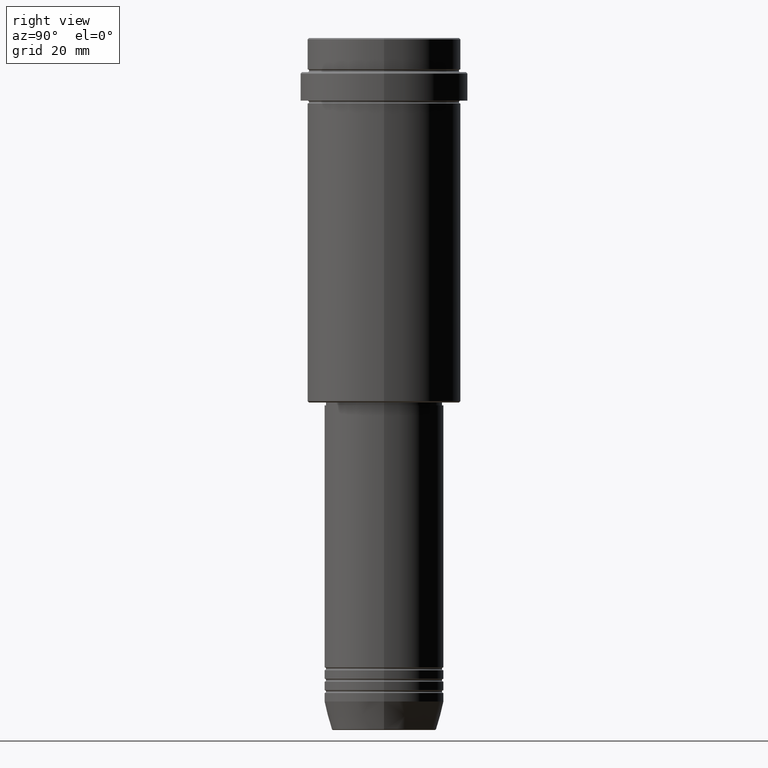
[diagram: clean part render]
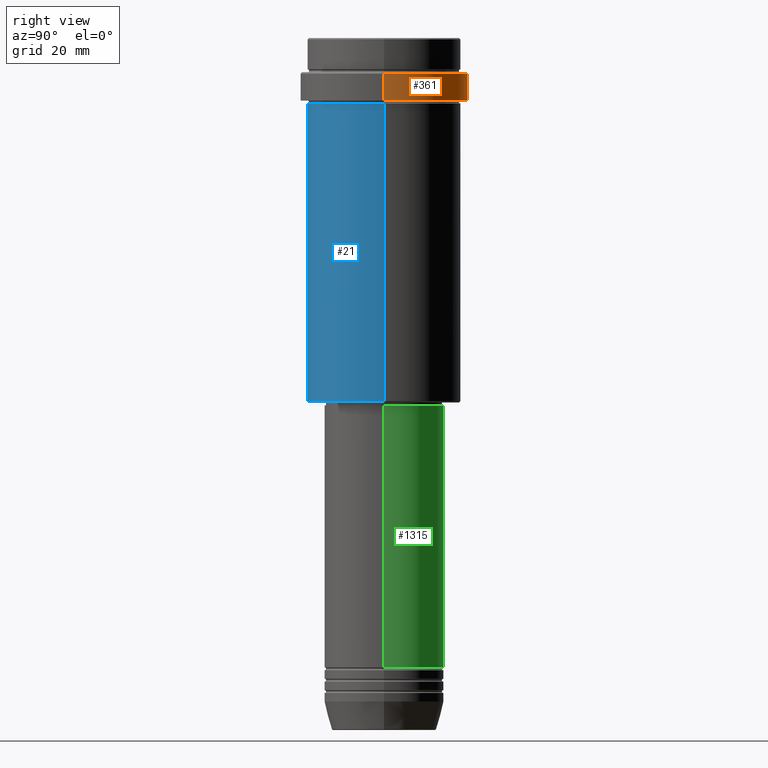
[diagram: same view with three faces highlighted in distinct colors, each labeled with its STEP entity id]
A machine part, right view with three faces highlighted in distinct colors.
Their STEP definitions:

[orange] entity #361 — the highlighted cylindrical surface (partial cylindrical patch) has radius 29.5 mm, axis along (-0, -0, 1).
#151 = DIRECTION ( 'NONE',  ( -0.000000000000000000, -0.000000000000000000, 1.000000000000000000 ) ) ;
#277 = VECTOR ( 'NONE', #1008, 1000.000000000000000 ) ;
#282 = CARTESIAN_POINT ( 'NONE',  ( 29.50000000000000000, 0.000000000000000000, 0.000000000000000000 ) ) ;
#306 = DIRECTION ( 'NONE',  ( -0.000000000000000000, -0.000000000000000000, 1.000000000000000000 ) ) ;
#311 = VERTEX_POINT ( 'NONE', #944 ) ;
#344 = EDGE_CURVE ( 'NONE', #1013, #311, #599, .T. ) ;
#361 = ADVANCED_FACE ( 'NONE', ( #493 ), #1359, .T. ) ;
#363 = AXIS2_PLACEMENT_3D ( 'NONE', #671, #1077, #458 ) ;
#369 = CARTESIAN_POINT ( 'NONE',  ( 0.000000000000000000, 0.000000000000000000, -22.00000000000000711 ) ) ;
#458 = DIRECTION ( 'NONE',  ( 1.000000000000000000, 0.000000000000000000, 0.000000000000000000 ) ) ;
#493 = FACE_OUTER_BOUND ( 'NONE', #1242, .T. ) ;
#500 = ORIENTED_EDGE ( 'NONE', *, *, #1154, .T. ) ;
#599 = LINE ( 'NONE', #282, #1183 ) ;
#603 = CARTESIAN_POINT ( 'NONE',  ( -29.50000000000000000, 3.612708057484691604E-15, 0.000000000000000000 ) ) ;
#650 = VERTEX_POINT ( 'NONE', #1122 ) ;
#671 = CARTESIAN_POINT ( 'NONE',  ( 0.000000000000000000, 0.000000000000000000, -12.49999999999994849 ) ) ;
#690 = ORIENTED_EDGE ( 'NONE', *, *, #716, .T. ) ;
#716 = EDGE_CURVE ( 'NONE', #1013, #1407, #1410, .T. ) ;
#827 = CARTESIAN_POINT ( 'NONE',  ( 0.000000000000000000, 0.000000000000000000, 0.000000000000000000 ) ) ;
#917 = EDGE_CURVE ( 'NONE', #650, #311, #1292, .T. ) ;
#944 = CARTESIAN_POINT ( 'NONE',  ( 29.50000000000000000, 0.000000000000000000, -12.49999999999994849 ) ) ;
#972 = CARTESIAN_POINT ( 'NONE',  ( -29.49999999999999645, 3.612708057484690815E-15, -22.00000000000000711 ) ) ;
#975 = CARTESIAN_POINT ( 'NONE',  ( 29.49999999999999645, 0.000000000000000000, -22.00000000000000711 ) ) ;
#1008 = DIRECTION ( 'NONE',  ( -0.000000000000000000, -0.000000000000000000, 1.000000000000000000 ) ) ;
#1013 = VERTEX_POINT ( 'NONE', #975 ) ;
#1077 = DIRECTION ( 'NONE',  ( 0.000000000000000000, 0.000000000000000000, -1.000000000000000000 ) ) ;
#1121 = LINE ( 'NONE', #603, #277 ) ;
#1122 = CARTESIAN_POINT ( 'NONE',  ( -29.50000000000000000, 3.612708057484691604E-15, -12.49999999999994849 ) ) ;
#1141 = DIRECTION ( 'NONE',  ( 1.000000000000000000, 0.000000000000000000, 0.000000000000000000 ) ) ;
#1150 = ORIENTED_EDGE ( 'NONE', *, *, #344, .F. ) ;
#1154 = EDGE_CURVE ( 'NONE', #1407, #650, #1121, .T. ) ;
#1167 = DIRECTION ( 'NONE',  ( 1.000000000000000000, 0.000000000000000000, 0.000000000000000000 ) ) ;
#1183 = VECTOR ( 'NONE', #306, 1000.000000000000000 ) ;
#1242 = EDGE_LOOP ( 'NONE', ( #690, #500, #1265, #1150 ) ) ;
#1265 = ORIENTED_EDGE ( 'NONE', *, *, #917, .T. ) ;
#1291 = AXIS2_PLACEMENT_3D ( 'NONE', #827, #1369, #1167 ) ;
#1292 = CIRCLE ( 'NONE', #363, 29.50000000000000000 ) ;
#1359 = CYLINDRICAL_SURFACE ( 'NONE', #1291, 29.50000000000000000 ) ;
#1364 = AXIS2_PLACEMENT_3D ( 'NONE', #369, #151, #1141 ) ;
#1369 = DIRECTION ( 'NONE',  ( -0.000000000000000000, -0.000000000000000000, 1.000000000000000000 ) ) ;
#1407 = VERTEX_POINT ( 'NONE', #972 ) ;
#1410 = CIRCLE ( 'NONE', #1364, 29.49999999999999645 ) ;

[blue] entity #21 — the highlighted cylindrical surface (partial cylindrical patch) has radius 27 mm, axis along (-0, -0, 1).
#21 = ADVANCED_FACE ( 'NONE', ( #334 ), #1396, .T. ) ;
#94 = CARTESIAN_POINT ( 'NONE',  ( 27.00000000000000355, 0.000000000000000000, 0.000000000000000000 ) ) ;
#132 = CIRCLE ( 'NONE', #970, 27.00000000000000355 ) ;
#200 = AXIS2_PLACEMENT_3D ( 'NONE', #443, #777, #428 ) ;
#202 = LINE ( 'NONE', #831, #562 ) ;
#251 = VECTOR ( 'NONE', #839, 1000.000000000000000 ) ;
#285 = DIRECTION ( 'NONE',  ( -0.000000000000000000, -0.000000000000000000, 1.000000000000000000 ) ) ;
#289 = VERTEX_POINT ( 'NONE', #999 ) ;
#302 = VERTEX_POINT ( 'NONE', #912 ) ;
#312 = CARTESIAN_POINT ( 'NONE',  ( 27.00000000000000355, 0.000000000000000000, -23.00000000000001421 ) ) ;
#320 = AXIS2_PLACEMENT_3D ( 'NONE', #1151, #609, #1039 ) ;
#334 = FACE_OUTER_BOUND ( 'NONE', #1370, .T. ) ;
#347 = DIRECTION ( 'NONE',  ( -1.000000000000000000, 0.000000000000000000, 0.000000000000000000 ) ) ;
#380 = ORIENTED_EDGE ( 'NONE', *, *, #1297, .F. ) ;
#428 = DIRECTION ( 'NONE',  ( 1.000000000000000000, 0.000000000000000000, 0.000000000000000000 ) ) ;
#443 = CARTESIAN_POINT ( 'NONE',  ( 0.000000000000000000, 0.000000000000000000, 0.000000000000000000 ) ) ;
#465 = DIRECTION ( 'NONE',  ( -0.000000000000000000, -0.000000000000000000, 1.000000000000000000 ) ) ;
#495 = VERTEX_POINT ( 'NONE', #312 ) ;
#561 = CARTESIAN_POINT ( 'NONE',  ( 27.00000000000000355, 0.000000000000000000, -127.5000000000000000 ) ) ;
#562 = VECTOR ( 'NONE', #285, 1000.000000000000000 ) ;
#609 = DIRECTION ( 'NONE',  ( -0.000000000000000000, -0.000000000000000000, 1.000000000000000000 ) ) ;
#777 = DIRECTION ( 'NONE',  ( -0.000000000000000000, -0.000000000000000000, 1.000000000000000000 ) ) ;
#813 = ORIENTED_EDGE ( 'NONE', *, *, #1193, .T. ) ;
#821 = CIRCLE ( 'NONE', #320, 27.00000000000000355 ) ;
#831 = CARTESIAN_POINT ( 'NONE',  ( -27.00000000000000355, 3.306546357697854128E-15, 0.000000000000000000 ) ) ;
#839 = DIRECTION ( 'NONE',  ( -0.000000000000000000, -0.000000000000000000, 1.000000000000000000 ) ) ;
#912 = CARTESIAN_POINT ( 'NONE',  ( -27.00000000000000355, 3.306546357697854128E-15, -127.5000000000000000 ) ) ;
#913 = ORIENTED_EDGE ( 'NONE', *, *, #997, .T. ) ;
#936 = LINE ( 'NONE', #94, #251 ) ;
#970 = AXIS2_PLACEMENT_3D ( 'NONE', #1319, #465, #347 ) ;
#978 = ORIENTED_EDGE ( 'NONE', *, *, #1276, .F. ) ;
#997 = EDGE_CURVE ( 'NONE', #302, #1328, #132, .T. ) ;
#999 = CARTESIAN_POINT ( 'NONE',  ( -27.00000000000000355, 3.306546357697854128E-15, -23.00000000000001421 ) ) ;
#1039 = DIRECTION ( 'NONE',  ( 1.000000000000000000, 0.000000000000000000, 0.000000000000000000 ) ) ;
#1151 = CARTESIAN_POINT ( 'NONE',  ( 0.000000000000000000, 0.000000000000000000, -23.00000000000001421 ) ) ;
#1193 = EDGE_CURVE ( 'NONE', #1328, #495, #936, .T. ) ;
#1276 = EDGE_CURVE ( 'NONE', #302, #289, #202, .T. ) ;
#1297 = EDGE_CURVE ( 'NONE', #289, #495, #821, .T. ) ;
#1319 = CARTESIAN_POINT ( 'NONE',  ( 0.000000000000000000, 0.000000000000000000, -127.5000000000000000 ) ) ;
#1328 = VERTEX_POINT ( 'NONE', #561 ) ;
#1370 = EDGE_LOOP ( 'NONE', ( #978, #913, #813, #380 ) ) ;
#1396 = CYLINDRICAL_SURFACE ( 'NONE', #200, 27.00000000000000355 ) ;

[green] entity #1315 — the highlighted cylindrical surface (partial cylindrical patch) has radius 21 mm, axis along (-0, -0, 1).
#15 = EDGE_CURVE ( 'NONE', #155, #1197, #1414, .T. ) ;
#53 = ORIENTED_EDGE ( 'NONE', *, *, #1211, .F. ) ;
#84 = VERTEX_POINT ( 'NONE', #1286 ) ;
#143 = CARTESIAN_POINT ( 'NONE',  ( 21.00000000000000000, 0.000000000000000000, 0.000000000000000000 ) ) ;
#155 = VERTEX_POINT ( 'NONE', #1006 ) ;
#173 = ORIENTED_EDGE ( 'NONE', *, *, #1323, .T. ) ;
#187 = CARTESIAN_POINT ( 'NONE',  ( 0.000000000000000000, 0.000000000000000000, -129.0000000000000000 ) ) ;
#245 = AXIS2_PLACEMENT_3D ( 'NONE', #1058, #1307, #871 ) ;
#288 = CARTESIAN_POINT ( 'NONE',  ( 21.00000000000000000, 0.000000000000000000, -129.0000000000000000 ) ) ;
#299 = AXIS2_PLACEMENT_3D ( 'NONE', #187, #1258, #309 ) ;
#300 = FACE_OUTER_BOUND ( 'NONE', #896, .T. ) ;
#309 = DIRECTION ( 'NONE',  ( 1.000000000000000000, 0.000000000000000000, 0.000000000000000000 ) ) ;
#314 = CARTESIAN_POINT ( 'NONE',  ( -21.00000000000000000, 2.571758278209441661E-15, -129.0000000000000000 ) ) ;
#349 = VERTEX_POINT ( 'NONE', #288 ) ;
#418 = DIRECTION ( 'NONE',  ( -0.000000000000000000, -0.000000000000000000, 1.000000000000000000 ) ) ;
#494 = ORIENTED_EDGE ( 'NONE', *, *, #1089, .F. ) ;
#567 = VECTOR ( 'NONE', #1128, 1000.000000000000000 ) ;
#615 = AXIS2_PLACEMENT_3D ( 'NONE', #1380, #418, #627 ) ;
#627 = DIRECTION ( 'NONE',  ( 1.000000000000000000, 0.000000000000000000, 0.000000000000000000 ) ) ;
#634 = CIRCLE ( 'NONE', #245, 21.00000000000000000 ) ;
#663 = DIRECTION ( 'NONE',  ( -0.000000000000000000, -0.000000000000000000, 1.000000000000000000 ) ) ;
#741 = CYLINDRICAL_SURFACE ( 'NONE', #615, 21.00000000000000000 ) ;
#871 = DIRECTION ( 'NONE',  ( 1.000000000000000000, 0.000000000000000000, 0.000000000000000000 ) ) ;
#896 = EDGE_LOOP ( 'NONE', ( #173, #1345, #53, #494 ) ) ;
#907 = CIRCLE ( 'NONE', #299, 21.00000000000000000 ) ;
#1006 = CARTESIAN_POINT ( 'NONE',  ( -21.00000000000000000, 2.571758278209441661E-15, -220.9999999999998863 ) ) ;
#1058 = CARTESIAN_POINT ( 'NONE',  ( 0.000000000000000000, 0.000000000000000000, -220.9999999999998863 ) ) ;
#1089 = EDGE_CURVE ( 'NONE', #84, #349, #1217, .T. ) ;
#1106 = VECTOR ( 'NONE', #663, 1000.000000000000000 ) ;
#1128 = DIRECTION ( 'NONE',  ( -0.000000000000000000, -0.000000000000000000, 1.000000000000000000 ) ) ;
#1197 = VERTEX_POINT ( 'NONE', #314 ) ;
#1211 = EDGE_CURVE ( 'NONE', #349, #1197, #907, .T. ) ;
#1217 = LINE ( 'NONE', #143, #567 ) ;
#1258 = DIRECTION ( 'NONE',  ( -0.000000000000000000, -0.000000000000000000, 1.000000000000000000 ) ) ;
#1286 = CARTESIAN_POINT ( 'NONE',  ( 21.00000000000000000, 0.000000000000000000, -220.9999999999998863 ) ) ;
#1307 = DIRECTION ( 'NONE',  ( -0.000000000000000000, -0.000000000000000000, 1.000000000000000000 ) ) ;
#1315 = ADVANCED_FACE ( 'NONE', ( #300 ), #741, .T. ) ;
#1317 = CARTESIAN_POINT ( 'NONE',  ( -21.00000000000000000, 2.571758278209441661E-15, 0.000000000000000000 ) ) ;
#1323 = EDGE_CURVE ( 'NONE', #84, #155, #634, .T. ) ;
#1345 = ORIENTED_EDGE ( 'NONE', *, *, #15, .T. ) ;
#1380 = CARTESIAN_POINT ( 'NONE',  ( 0.000000000000000000, 0.000000000000000000, 0.000000000000000000 ) ) ;
#1414 = LINE ( 'NONE', #1317, #1106 ) ;